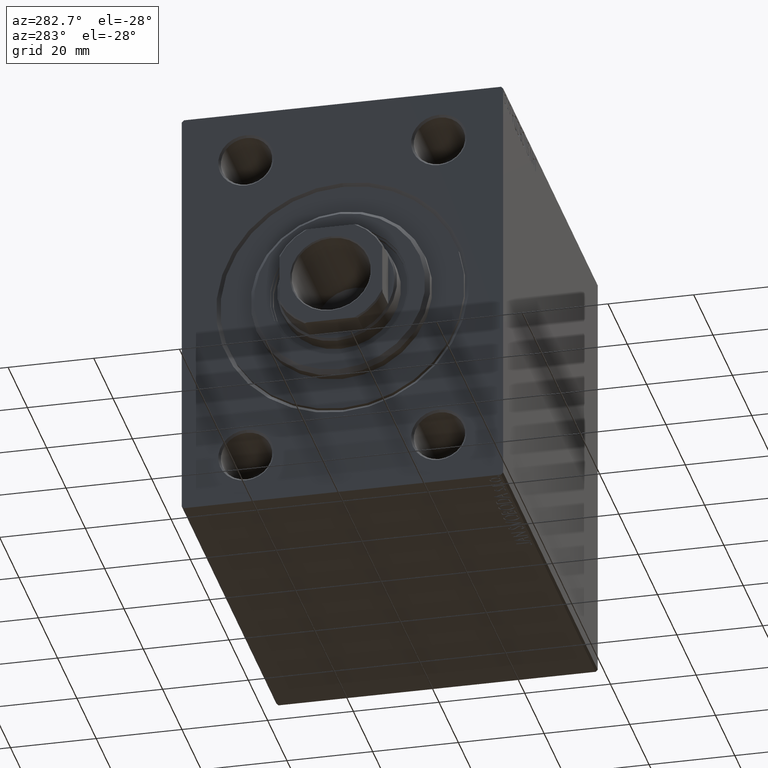
[diagram: clean part render]
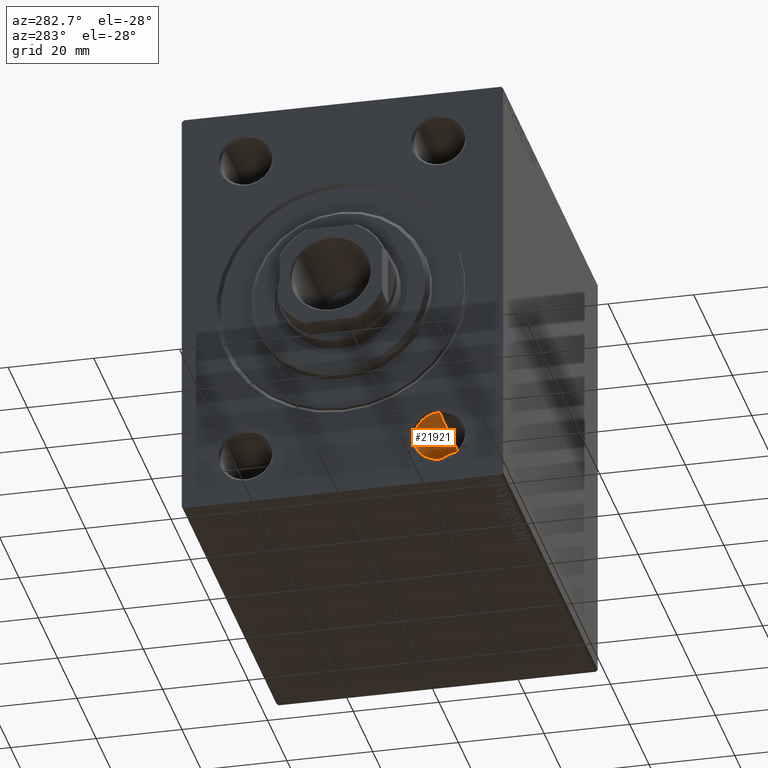
[diagram: same view with one face highlighted and labeled with its STEP entity id]
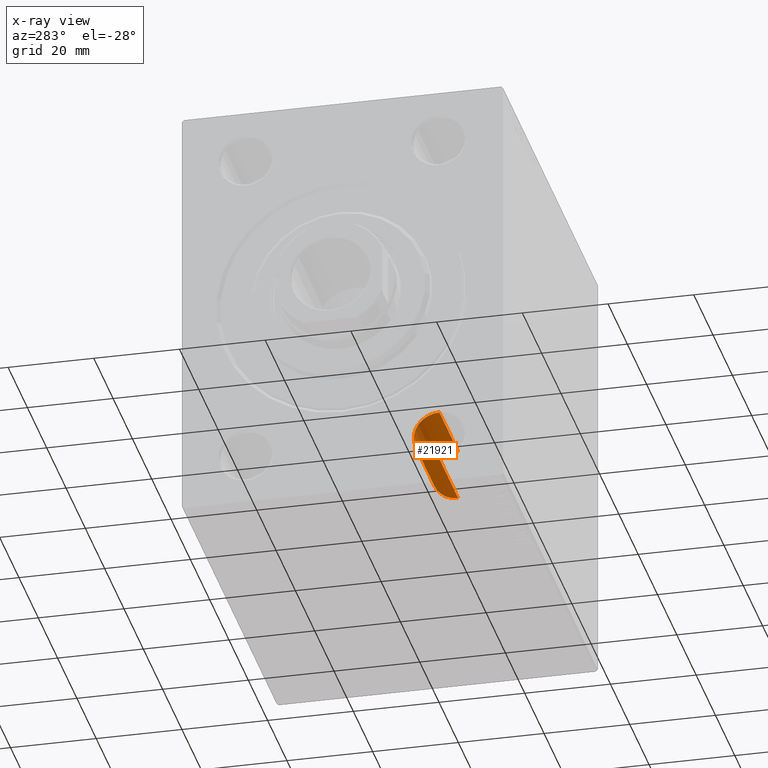
[diagram: x-ray of the same camera — body ghosted, the highlighted face saturated]
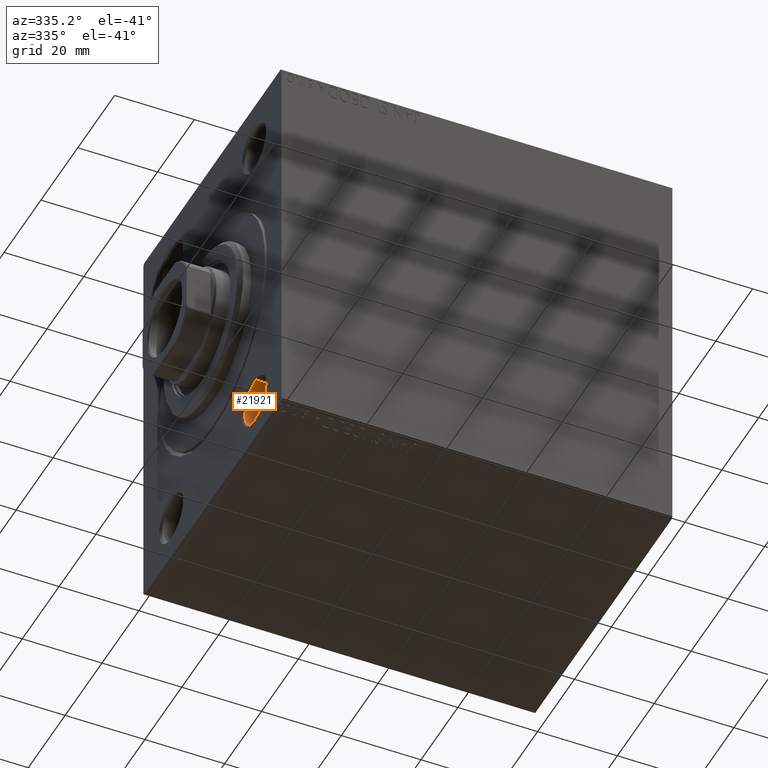
[diagram: same view with one face highlighted and labeled with its STEP entity id]
A machine part, auxiliary view. The second image highlights one B-rep face of the part: STEP entity #21921.
The next image is the same camera in x-ray: the body ghosted, the highlighted face saturated — about 0% of this face is hidden behind the body in this view.
A second angle (auxiliary view) of the same face is appended — the face is thin or edge-on in the first view.
In plain terms, the highlighted cylindrical surface (edge-blend (fillet) strip) has radius 6 mm, axis along (-1, -0, -0).
Its self-contained STEP definition (entity closure, byte-faithful):
#438 = EDGE_LOOP ( 'NONE', ( #33040, #34178, #28953, #23467 ) ) ;
#1387 = LINE ( 'NONE', #28384, #8822 ) ;
#2128 = FACE_OUTER_BOUND ( 'NONE', #438, .T. ) ;
#2349 = DIRECTION ( 'NONE',  ( 0.000000000000000000, 0.000000000000000000, 1.000000000000000000 ) ) ;
#7910 = DIRECTION ( 'NONE',  ( -1.000000000000000000, -0.000000000000000000, -0.000000000000000000 ) ) ;
#8822 = VECTOR ( 'NONE', #7910, 1000.000000000000000 ) ;
#9089 = CARTESIAN_POINT ( 'NONE',  ( 0.000000000000000000, -22.50000000000000000, -38.00000000000000711 ) ) ;
#11088 = VECTOR ( 'NONE', #29761, 1000.000000000000000 ) ;
#16938 = CARTESIAN_POINT ( 'NONE',  ( 0.4999999999999865663, -22.50000000000000000, -38.00000000000000711 ) ) ;
#17814 = AXIS2_PLACEMENT_3D ( 'NONE', #29377, #28483, #39272 ) ;
#18536 = EDGE_CURVE ( 'NONE', #37980, #28853, #1387, .T. ) ;
#19973 = CIRCLE ( 'NONE', #17814, 5.999999999999998224 ) ;
#20080 = DIRECTION ( 'NONE',  ( -1.000000000000000000, 0.000000000000000000, 0.000000000000000000 ) ) ;
#21921 = ADVANCED_FACE ( 'NONE', ( #2128 ), #26843, .F. ) ;
#23467 = ORIENTED_EDGE ( 'NONE', *, *, #27602, .T. ) ;
#25360 = CARTESIAN_POINT ( 'NONE',  ( 20.00000000000000000, -22.50000000000000000, -44.00000000000000711 ) ) ;
#26843 = CYLINDRICAL_SURFACE ( 'NONE', #26903, 5.999999999999998224 ) ;
#26903 = AXIS2_PLACEMENT_3D ( 'NONE', #9089, #33378, #2349 ) ;
#27539 = EDGE_CURVE ( 'NONE', #28586, #38622, #44332, .T. ) ;
#27602 = EDGE_CURVE ( 'NONE', #28853, #38622, #27620, .T. ) ;
#27620 = CIRCLE ( 'NONE', #37680, 5.999999999999998224 ) ;
#27874 = CARTESIAN_POINT ( 'NONE',  ( 20.00000000000000000, -22.50000000000000000, -32.00000000000000711 ) ) ;
#28384 = CARTESIAN_POINT ( 'NONE',  ( 0.000000000000000000, -22.50000000000000000, -32.00000000000000711 ) ) ;
#28483 = DIRECTION ( 'NONE',  ( -1.000000000000000000, -0.000000000000000000, -0.000000000000000000 ) ) ;
#28586 = VERTEX_POINT ( 'NONE', #25360 ) ;
#28853 = VERTEX_POINT ( 'NONE', #37911 ) ;
#28953 = ORIENTED_EDGE ( 'NONE', *, *, #18536, .T. ) ;
#29377 = CARTESIAN_POINT ( 'NONE',  ( 20.00000000000000000, -22.50000000000000000, -38.00000000000000711 ) ) ;
#29761 = DIRECTION ( 'NONE',  ( -1.000000000000000000, -0.000000000000000000, -0.000000000000000000 ) ) ;
#33040 = ORIENTED_EDGE ( 'NONE', *, *, #27539, .F. ) ;
#33378 = DIRECTION ( 'NONE',  ( -1.000000000000000000, -0.000000000000000000, -0.000000000000000000 ) ) ;
#33573 = CARTESIAN_POINT ( 'NONE',  ( 0.000000000000000000, -22.50000000000000000, -44.00000000000000711 ) ) ;
#34178 = ORIENTED_EDGE ( 'NONE', *, *, #36026, .F. ) ;
#36026 = EDGE_CURVE ( 'NONE', #37980, #28586, #19973, .T. ) ;
#37680 = AXIS2_PLACEMENT_3D ( 'NONE', #16938, #20080, #43451 ) ;
#37911 = CARTESIAN_POINT ( 'NONE',  ( 0.4999999999999865663, -22.50000000000000000, -32.00000000000000711 ) ) ;
#37980 = VERTEX_POINT ( 'NONE', #27874 ) ;
#38622 = VERTEX_POINT ( 'NONE', #39396 ) ;
#39272 = DIRECTION ( 'NONE',  ( 0.000000000000000000, 0.000000000000000000, 1.000000000000000000 ) ) ;
#39396 = CARTESIAN_POINT ( 'NONE',  ( 0.4999999999999865663, -22.50000000000000000, -44.00000000000000711 ) ) ;
#43451 = DIRECTION ( 'NONE',  ( 0.000000000000000000, 0.000000000000000000, -1.000000000000000000 ) ) ;
#44332 = LINE ( 'NONE', #33573, #11088 ) ;